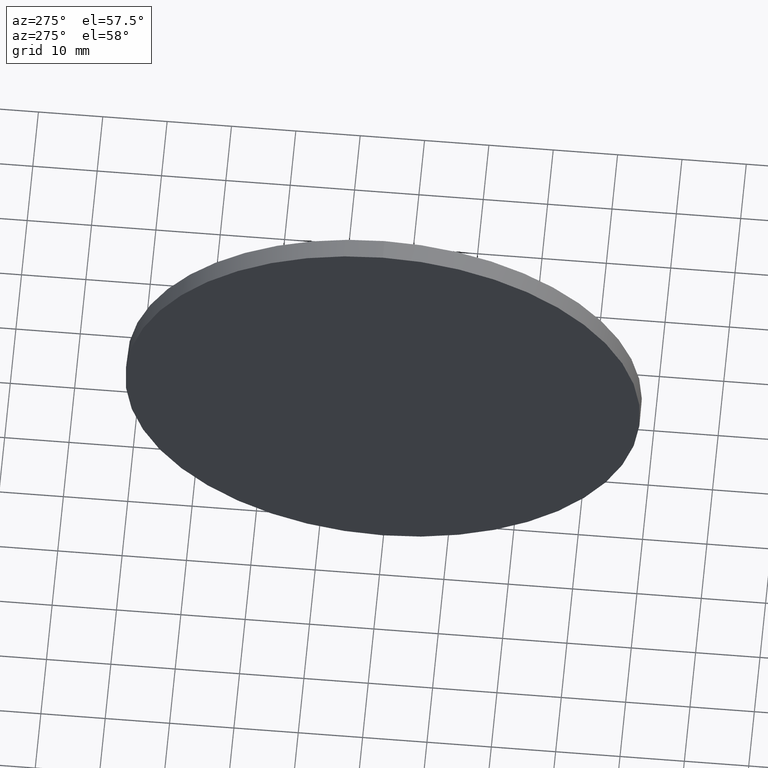
[diagram: clean part render]
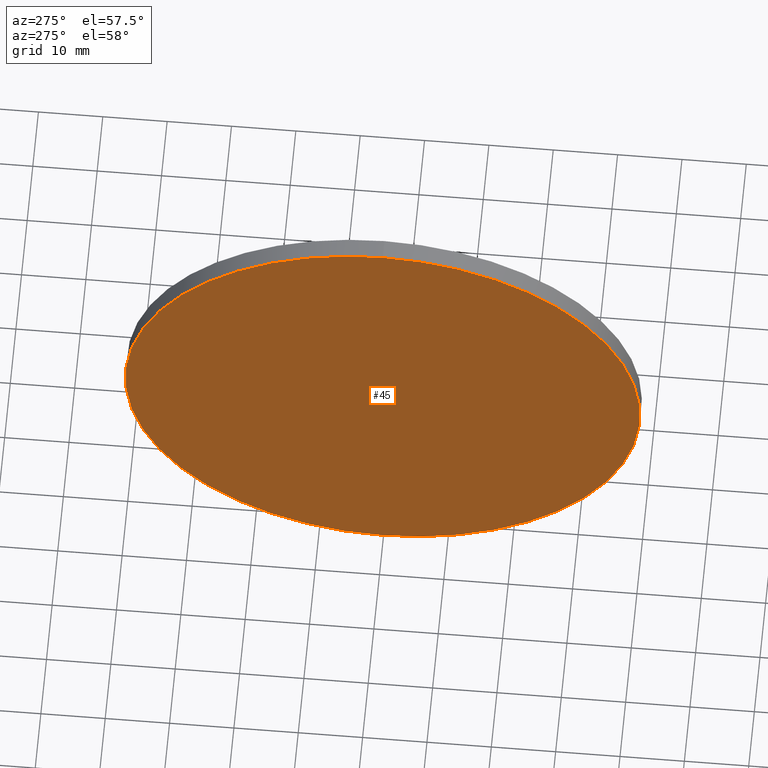
[diagram: same view with one face highlighted and labeled with its STEP entity id]
A machine part, auxiliary view. The second image highlights one B-rep face of the part: STEP entity #45.
In plain terms, the highlighted planar face has unit normal (1, 0, 0).
Its self-contained STEP definition (entity closure, byte-faithful):
#8 = DIRECTION ( 'NONE',  ( 0.0000000000000000000, 0.0000000000000000000, -1.000000000000000000 ) ) ;
#29 = VERTEX_POINT ( 'NONE', #32 ) ;
#31 = AXIS2_PLACEMENT_3D ( 'NONE', #52, #159, #8 ) ;
#32 = CARTESIAN_POINT ( 'NONE',  ( 236.1561263384603500, 130.0418907599245100, -40.00000000000000700 ) ) ;
#33 = PLANE ( 'NONE',  #31 ) ;
#45 = ADVANCED_FACE ( 'NONE', ( #94 ), #33, .F. ) ;
#50 = AXIS2_PLACEMENT_3D ( 'NONE', #127, #142, #71 ) ;
#52 = CARTESIAN_POINT ( 'NONE',  ( 236.1561263384603500, 130.0418907599245100, 0.0000000000000000000 ) ) ;
#62 = EDGE_CURVE ( 'NONE', #29, #155, #128, .T. ) ;
#71 = DIRECTION ( 'NONE',  ( 0.0000000000000000000, 0.0000000000000000000, 1.000000000000000000 ) ) ;
#74 = ORIENTED_EDGE ( 'NONE', *, *, #62, .T. ) ;
#84 = AXIS2_PLACEMENT_3D ( 'NONE', #117, #134, #97 ) ;
#94 = FACE_OUTER_BOUND ( 'NONE', #130, .T. ) ;
#96 = EDGE_CURVE ( 'NONE', #155, #29, #173, .T. ) ;
#97 = DIRECTION ( 'NONE',  ( 0.0000000000000000000, 0.0000000000000000000, 1.000000000000000000 ) ) ;
#117 = CARTESIAN_POINT ( 'NONE',  ( 236.1561263384603500, 130.0418907599245100, 0.0000000000000000000 ) ) ;
#127 = CARTESIAN_POINT ( 'NONE',  ( 236.1561263384603500, 130.0418907599245100, 0.0000000000000000000 ) ) ;
#128 = CIRCLE ( 'NONE', #50, 40.00000000000000700 ) ;
#130 = EDGE_LOOP ( 'NONE', ( #177, #74 ) ) ;
#134 = DIRECTION ( 'NONE',  ( -1.000000000000000000, -0.0000000000000000000, -0.0000000000000000000 ) ) ;
#142 = DIRECTION ( 'NONE',  ( -1.000000000000000000, -0.0000000000000000000, -0.0000000000000000000 ) ) ;
#155 = VERTEX_POINT ( 'NONE', #165 ) ;
#159 = DIRECTION ( 'NONE',  ( 1.000000000000000000, 0.0000000000000000000, 0.0000000000000000000 ) ) ;
#165 = CARTESIAN_POINT ( 'NONE',  ( 236.1561263384603500, 130.0418907599245100, 40.00000000000000700 ) ) ;
#173 = CIRCLE ( 'NONE', #84, 40.00000000000000700 ) ;
#177 = ORIENTED_EDGE ( 'NONE', *, *, #96, .T. ) ;